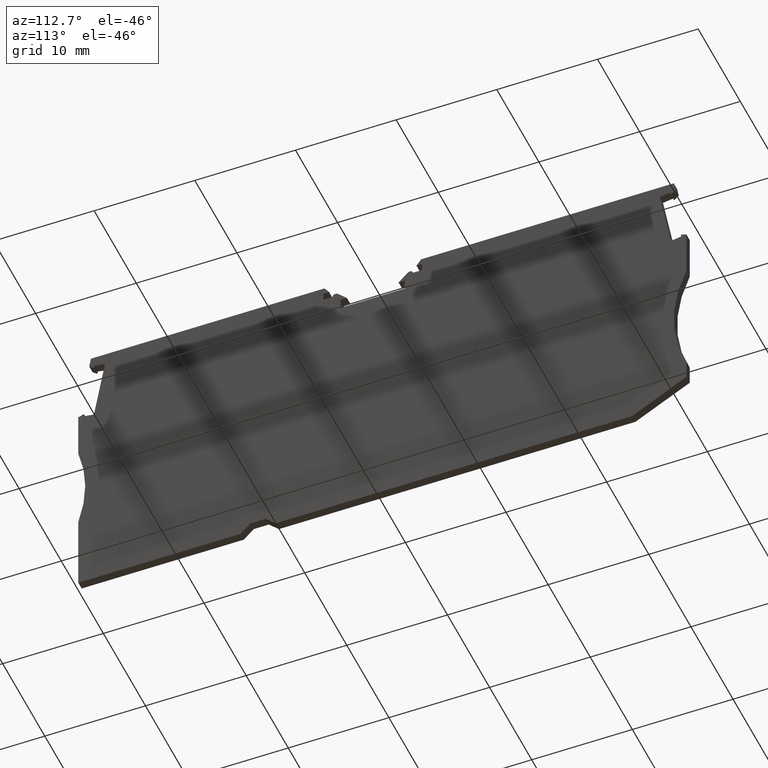
[diagram: clean part render]
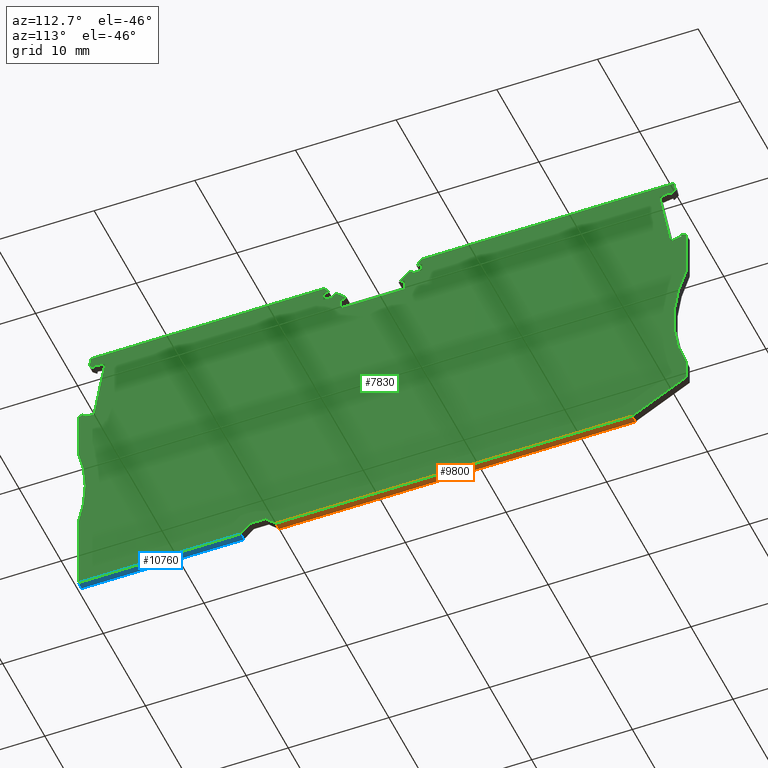
[diagram: same view with three faces highlighted in distinct colors, each labeled with its STEP entity id]
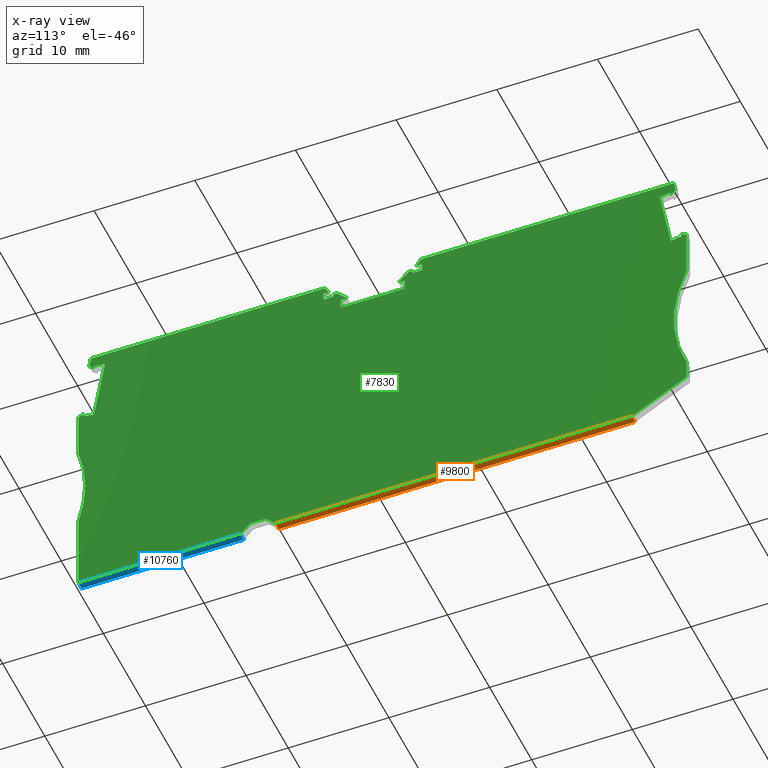
[diagram: x-ray of the same camera — body ghosted, the three highlighted faces saturated]
A machine part, auxiliary view with three faces highlighted in distinct colors.
The next image is the same camera in x-ray (body ghosted, the three faces saturated) — at least one of them is partly hidden behind the body in this view.
Their STEP definitions:

[orange] entity #9800 — the highlighted planar face has unit normal (0, 0, 1).
#850=CARTESIAN_POINT('',(5.15000000000215,19.5999999999931,
6.20000000000615));
#860=VERTEX_POINT('',#850);
#890=CARTESIAN_POINT('',(5.15000000000215,36.2906041739468,
6.20000000000203));
#900=DIRECTION('',(-2.6054385416317E-18,-1.,2.47413201037716E-13));
#910=VECTOR('',#900,1.);
#920=LINE('',#890,#910);
#930=CARTESIAN_POINT('',(5.15000000000215,54.9927090400278,
6.1999999999974));
#940=VERTEX_POINT('',#930);
#950=EDGE_CURVE('',#940,#860,#920,.T.);
#6900=CARTESIAN_POINT('',(5.95000000000217,54.9927090400278,
6.1999999999974));
#6910=VERTEX_POINT('',#6900);
#6940=CARTESIAN_POINT('',(5.95000000000216,-11.6296808260532,
6.20000000001388));
#6950=DIRECTION('',(5.81165897728895E-17,1.,-2.47413201037716E-13));
#6960=VECTOR('',#6950,1.);
#6970=LINE('',#6940,#6960);
#6980=CARTESIAN_POINT('',(5.95000000000216,19.5999999999931,
6.20000000000615));
#6990=VERTEX_POINT('',#6980);
#7000=EDGE_CURVE('',#6990,#6910,#6970,.T.);
#9270=CARTESIAN_POINT('',(3.80000000000219,54.9927090400278,
6.1999999999974));
#9280=DIRECTION('',(-1.,2.60543854163169E-18,1.33874887071976E-29));
#9290=VECTOR('',#9280,1.);
#9300=LINE('',#9270,#9290);
#9310=EDGE_CURVE('',#6910,#940,#9300,.T.);
#9640=CARTESIAN_POINT('',(5.15000000000215,19.5999999999931,
6.20000000000615));
#9650=DIRECTION('',(1.40359132708416E-29,2.47413201037716E-13,1.));
#9660=DIRECTION('',(-2.6054385416317E-18,-1.,2.47413201037716E-13));
#9670=AXIS2_PLACEMENT_3D('',#9640,#9650,#9660);
#9680=PLANE('',#9670);
#9690=ORIENTED_EDGE('',*,*,#950,.F.);
#9700=CARTESIAN_POINT('',(3.80000000000219,19.5999999999931,
6.20000000000615));
#9710=DIRECTION('',(1.,-2.6054385416317E-18,-1.33902586593012E-29));
#9720=VECTOR('',#9710,1.);
#9730=LINE('',#9700,#9720);
#9740=EDGE_CURVE('',#860,#6990,#9730,.T.);
#9750=ORIENTED_EDGE('',*,*,#9740,.F.);
#9760=ORIENTED_EDGE('',*,*,#7000,.F.);
#9770=ORIENTED_EDGE('',*,*,#9310,.F.);
#9780=EDGE_LOOP('',(#9770,#9760,#9750,#9690));
#9790=FACE_OUTER_BOUND('',#9780,.T.);
#9800=ADVANCED_FACE('',(#9790),#9680,.F.);

[blue] entity #10760 — the highlighted planar face has unit normal (0, 0, 1).
#530=CARTESIAN_POINT('',(5.15000000000215,-3.32178728967847E-12,
6.200000000011));
#540=VERTEX_POINT('',#530);
#570=CARTESIAN_POINT('',(5.15000000000215,36.2906041739468,
6.20000000000204));
#580=DIRECTION('',(2.6054385416317E-18,1.,-2.47218912008407E-13));
#590=VECTOR('',#580,1.);
#600=LINE('',#570,#590);
#610=CARTESIAN_POINT('',(5.15000000000215,16.0999999999931,
6.20000000000702));
#620=VERTEX_POINT('',#610);
#630=EDGE_CURVE('',#540,#620,#600,.T.);
#7220=CARTESIAN_POINT('',(5.95000000000216,16.099999999993,
6.20000000000702));
#7230=VERTEX_POINT('',#7220);
#7260=CARTESIAN_POINT('',(5.95000000000216,-11.6296808260532,
6.20000000001388));
#7270=DIRECTION('',(5.81165897728895E-17,1.,-2.47218912008407E-13));
#7280=VECTOR('',#7270,1.);
#7290=LINE('',#7260,#7280);
#7300=CARTESIAN_POINT('',(5.95000000000216,-3.32178728967847E-12,
6.200000000011));
#7310=VERTEX_POINT('',#7300);
#7320=EDGE_CURVE('',#7310,#7230,#7290,.T.);
#10420=CARTESIAN_POINT('',(3.80000000000219,16.099999999993,
6.20000000000702));
#10430=DIRECTION('',(1.,-2.60543854163169E-18,-1.33902586593012E-29));
#10440=VECTOR('',#10430,1.);
#10450=LINE('',#10420,#10440);
#10460=EDGE_CURVE('',#620,#7230,#10450,.T.);
#10600=CARTESIAN_POINT('',(5.15000000000215,3.99999999999303,
6.20000000001001));
#10610=DIRECTION('',(1.40354070627164E-29,2.47218912008407E-13,1.));
#10620=DIRECTION('',(-2.6054385416317E-18,-1.,2.47218912008407E-13));
#10630=AXIS2_PLACEMENT_3D('',#10600,#10610,#10620);
#10640=PLANE('',#10630);
#10650=ORIENTED_EDGE('',*,*,#630,.T.);
#10660=CARTESIAN_POINT('',(3.80000000000219,-3.32178728967847E-12,
6.200000000011));
#10670=DIRECTION('',(-1.,2.6054385416317E-18,1.33889822652162E-29));
#10680=VECTOR('',#10670,1.);
#10690=LINE('',#10660,#10680);
#10700=EDGE_CURVE('',#7310,#540,#10690,.T.);
#10710=ORIENTED_EDGE('',*,*,#10700,.T.);
#10720=ORIENTED_EDGE('',*,*,#7320,.F.);
#10730=ORIENTED_EDGE('',*,*,#10460,.T.);
#10740=EDGE_LOOP('',(#10730,#10720,#10710,#10650));
#10750=FACE_OUTER_BOUND('',#10740,.T.);
#10760=ADVANCED_FACE('',(#10750),#10640,.F.);

[green] entity #7830 — the highlighted planar face has unit normal (1, -0, 0).
#3960=CARTESIAN_POINT('',(5.95000000000216,25.5499999999946,
11.9749999999997));
#3970=DIRECTION('',(1.,-5.81165897728895E-17,3.37505634420511E-31));
#3980=DIRECTION('',(5.81165897728895E-17,1.,-2.47218912008407E-13));
#3990=AXIS2_PLACEMENT_3D('',#3960,#3970,#3980);
#4000=PLANE('',#3990);
#4010=CARTESIAN_POINT('',(5.95000000000216,4.48828473633635,
44.4000000000078));
#4020=DIRECTION('',(-1.00918399063042E-17,-0.173648177667372,
-0.98480775301213));
#4030=VECTOR('',#4020,1.);
#4040=LINE('',#4010,#4030);
#4050=CARTESIAN_POINT('',(5.95000000000216,2.65231721275191,
33.9877107621221));
#4060=VERTEX_POINT('',#4050);
#4070=CARTESIAN_POINT('',(5.95000000000216,1.55418527211285,
27.7598950516506));
#4080=VERTEX_POINT('',#4070);
#4090=EDGE_CURVE('',#4060,#4080,#4040,.T.);
#4100=ORIENTED_EDGE('',*,*,#4090,.T.);
#4110=CARTESIAN_POINT('',(5.95000000000216,-11.6296808260457,
36.5060123547894));
#4120=DIRECTION('',(5.72336681869704E-17,0.984807753012186,
-0.173648177667055));
#4130=VECTOR('',#4120,1.);
#4140=LINE('',#4110,#4130);
#4150=CARTESIAN_POINT('',(5.95000000000216,1.60477348499745,
34.1724209847973));
#4160=VERTEX_POINT('',#4150);
#4170=EDGE_CURVE('',#4160,#4060,#4140,.T.);
#4180=ORIENTED_EDGE('',*,*,#4170,.T.);
#4190=CARTESIAN_POINT('',(5.95000000000216,3.40817161270295,
44.4000000000081));
#4200=DIRECTION('',(1.00918399062575E-17,0.173648177666569,
0.984807753012272));
#4210=VECTOR('',#4200,1.);
#4220=LINE('',#4190,#4210);
#4230=CARTESIAN_POINT('',(5.95000000000216,1.55685652993745,
33.9006704287135));
#4240=VERTEX_POINT('',#4230);
#4250=EDGE_CURVE('',#4240,#4160,#4220,.T.);
#4260=ORIENTED_EDGE('',*,*,#4250,.T.);
#4270=CARTESIAN_POINT('',(5.95000000000216,-11.6296808260437,
44.9654890605981));
#4280=DIRECTION('',(4.45198906485883E-17,0.76604444311968,
-0.642787609685702));
#4290=VECTOR('',#4280,1.);
#4300=LINE('',#4270,#4290);
#4310=CARTESIAN_POINT('',(5.95000000000216,1.08804400656258,
34.2940508441678));
#4320=VERTEX_POINT('',#4310);
#4330=EDGE_CURVE('',#4320,#4240,#4300,.T.);
#4340=ORIENTED_EDGE('',*,*,#4330,.T.);
#4350=CARTESIAN_POINT('',(5.95000000000216,2.86999550841224,
44.4000000000082));
#4360=DIRECTION('',(-1.00918399063173E-17,-0.173648177667598,
-0.984807753012091));
#4370=VECTOR('',#4360,1.);
#4380=LINE('',#4350,#4370);
#4390=CARTESIAN_POINT('',(5.95000000000216,1.25660363491963,
35.2499999999869));
#4400=VERTEX_POINT('',#4390);
#4410=EDGE_CURVE('',#4400,#4320,#4380,.T.);
#4420=ORIENTED_EDGE('',*,*,#4410,.T.);
#4430=CARTESIAN_POINT('',(5.95000000000216,-11.6296808260461,
35.2499999999885));
#4440=DIRECTION('',(-5.81165897728895E-17,-1.,1.26176846748649E-13));
#4450=VECTOR('',#4440,1.);
#4460=LINE('',#4430,#4450);
#4470=CARTESIAN_POINT('',(5.95000000000216,24.4514317309689,
35.2499999999839));
#4480=VERTEX_POINT('',#4470);
#4490=EDGE_CURVE('',#4480,#4400,#4460,.T.);
#4500=ORIENTED_EDGE('',*,*,#4490,.T.);
#4510=CARTESIAN_POINT('',(5.95000000000216,18.0445327563391,
44.4000000000045));
#4520=DIRECTION('',(-3.3334306454798E-17,-0.573576436350841,
0.819152044289136));
#4530=VECTOR('',#4520,1.);
#4540=LINE('',#4510,#4530);
#4550=CARTESIAN_POINT('',(5.95000000000216,24.9065666307521,
34.6000000000594));
#4560=VERTEX_POINT('',#4550);
#4570=EDGE_CURVE('',#4560,#4480,#4540,.T.);
#4580=ORIENTED_EDGE('',*,*,#4570,.T.);
#4590=CARTESIAN_POINT('',(5.95000000000216,-11.6296808260462,
34.6000000000684));
#4600=DIRECTION('',(5.81165897728895E-17,1.,-2.47218912008407E-13));
#4610=VECTOR('',#4600,1.);
#4620=LINE('',#4590,#4610);
#4630=CARTESIAN_POINT('',(5.95000000000216,24.3500000001362,
34.6000000000596));
#4640=VERTEX_POINT('',#4630);
#4650=EDGE_CURVE('',#4640,#4560,#4620,.T.);
#4660=ORIENTED_EDGE('',*,*,#4650,.T.);
#4670=CARTESIAN_POINT('',(5.95000000000216,24.3500000000845,
44.4000000000029));
#4680=DIRECTION('',(-3.07122853704836E-28,-5.27879129297304E-12,1.));
#4690=VECTOR('',#4680,1.);
#4700=LINE('',#4670,#4690);
#4710=CARTESIAN_POINT('',(5.95000000000216,24.3500000001405,
33.7999999999752));
#4720=VERTEX_POINT('',#4710);
#4730=EDGE_CURVE('',#4720,#4640,#4700,.T.);
#4740=ORIENTED_EDGE('',*,*,#4730,.T.);
#4750=CARTESIAN_POINT('',(5.95000000000216,-11.6296808260464,
33.7999999999841));
#4760=DIRECTION('',(-5.81165897728895E-17,-1.,2.47316056523061E-13));
#4770=VECTOR('',#4760,1.);
#4780=LINE('',#4750,#4770);
#4790=CARTESIAN_POINT('',(5.95000000000216,25.2595836944425,
33.799999999975));
#4800=VERTEX_POINT('',#4790);
#4810=EDGE_CURVE('',#4800,#4720,#4780,.T.);
#4820=ORIENTED_EDGE('',*,*,#4810,.T.);
#4830=CARTESIAN_POINT('',(5.95000000000216,25.5595836944425,
33.8000000000614));
#4840=DIRECTION('',(1.,-5.81165897728895E-17,3.37505634420511E-31));
#4850=DIRECTION('',(5.81165897728895E-17,1.,-2.47316056523061E-13));
#4860=AXIS2_PLACEMENT_3D('',#4830,#4840,#4850);
#4870=CIRCLE('',#4860,0.3);
#4880=CARTESIAN_POINT('',(5.95000000000216,25.7717157287986,
34.0121320344173));
#4890=VERTEX_POINT('',#4880);
#4900=EDGE_CURVE('',#4890,#4800,#4870,.T.);
#4910=ORIENTED_EDGE('',*,*,#4900,.T.);
#4920=CARTESIAN_POINT('',(5.95000000000216,-11.6296808260371,
71.4135285892713));
#4930=DIRECTION('',(-4.10946347278371E-17,-0.707106781186374,
0.707106781186721));
#4940=VECTOR('',#4930,1.);
#4950=LINE('',#4920,#4940);
#4960=CARTESIAN_POINT('',(5.95000000000216,26.6838477632309,
33.0999999999844));
#4970=VERTEX_POINT('',#4960);
#4980=EDGE_CURVE('',#4970,#4890,#4950,.T.);
#4990=ORIENTED_EDGE('',*,*,#4980,.T.);
#5000=CARTESIAN_POINT('',(5.95000000000216,-11.6296808260466,
33.0999999999944));
#5010=DIRECTION('',(5.81165897728895E-17,1.,-2.58862375979163E-13));
#5020=VECTOR('',#5010,1.);
#5030=LINE('',#5000,#5020);
#5040=CARTESIAN_POINT('',(5.95000000000216,26.0750000001225,
33.0999999999846));
#5050=VERTEX_POINT('',#5040);
#5060=EDGE_CURVE('',#5050,#4970,#5030,.T.);
#5070=ORIENTED_EDGE('',*,*,#5060,.T.);
#5080=CARTESIAN_POINT('',(5.95000000000216,26.0750000001259,
44.4000000000025));
#5090=DIRECTION('',(1.73980824901728E-29,3.0517255389384E-13,1.));
#5100=VECTOR('',#5090,1.);
#5110=LINE('',#5080,#5100);
#5120=CARTESIAN_POINT('',(5.95000000000216,26.0750000001222,
32.0499999999848));
#5130=VERTEX_POINT('',#5120);
#5140=EDGE_CURVE('',#5130,#5050,#5110,.T.);
#5150=ORIENTED_EDGE('',*,*,#5140,.T.);
#5160=CARTESIAN_POINT('',(5.95000000000216,-11.6296808260468,
32.0499999999963));
#5170=DIRECTION('',(-5.81165897728895E-17,-1.,3.0517255389384E-13));
#5180=VECTOR('',#5170,1.);
#5190=LINE('',#5160,#5180);
#5200=CARTESIAN_POINT('',(5.95000000000217,32.4250000001222,
32.0499999999829));
#5210=VERTEX_POINT('',#5200);
#5220=EDGE_CURVE('',#5210,#5130,#5190,.T.);
#5230=ORIENTED_EDGE('',*,*,#5220,.T.);
#5240=CARTESIAN_POINT('',(5.95000000000217,32.4250000001252,
44.4000000000009));
#5250=DIRECTION('',(-1.39848487956171E-29,-2.46441755891169E-13,-1.));
#5260=VECTOR('',#5250,1.);
#5270=LINE('',#5240,#5260);
#5280=CARTESIAN_POINT('',(5.95000000000217,32.4250000001224,
33.0999999999826));
#5290=VERTEX_POINT('',#5280);
#5300=EDGE_CURVE('',#5290,#5210,#5270,.T.);
#5310=ORIENTED_EDGE('',*,*,#5300,.T.);
#5320=CARTESIAN_POINT('',(5.95000000000216,-11.6296808260466,
33.0999999999955));
#5330=DIRECTION('',(5.81165897728895E-17,1.,-2.92835200532693E-13));
#5340=VECTOR('',#5330,1.);
#5350=LINE('',#5320,#5340);
#5360=CARTESIAN_POINT('',(5.95000000000217,31.8161522370139,
33.0999999999827));
#5370=VERTEX_POINT('',#5360);
#5380=EDGE_CURVE('',#5370,#5290,#5350,.T.);
#5390=ORIENTED_EDGE('',*,*,#5380,.T.);
#5400=CARTESIAN_POINT('',(5.95000000000216,-11.6296808260573,
-10.3458330630619));
#5410=DIRECTION('',(-4.10946347278593E-17,-0.707106781186764,
-0.707106781186331));
#5420=VECTOR('',#5410,1.);
#5430=LINE('',#5400,#5420);
#5440=CARTESIAN_POINT('',(5.95000000000217,32.7282842714468,
34.0121320344151));
#5450=VERTEX_POINT('',#5440);
#5460=EDGE_CURVE('',#5450,#5370,#5430,.T.);
#5470=ORIENTED_EDGE('',*,*,#5460,.T.);
#5480=CARTESIAN_POINT('',(5.95000000000217,32.9404163058027,
33.8000000000591));
#5490=DIRECTION('',(-1.,5.81165897728895E-17,-3.37505634420511E-31));
#5500=DIRECTION('',(-5.81165897728895E-17,-1.,3.04353764413179E-13));
#5510=AXIS2_PLACEMENT_3D('',#5480,#5490,#5500);
#5520=CIRCLE('',#5510,0.3);
#5530=CARTESIAN_POINT('',(5.95000000000217,33.2404163058027,
33.8000000000157));
#5540=VERTEX_POINT('',#5530);
#5550=EDGE_CURVE('',#5450,#5540,#5520,.T.);
#5560=ORIENTED_EDGE('',*,*,#5550,.F.);
#5570=CARTESIAN_POINT('',(5.95000000000216,-11.6296808260464,
33.8000000000268));
#5580=DIRECTION('',(-5.81165897728895E-17,-1.,2.47316056523061E-13));
#5590=VECTOR('',#5580,1.);
#5600=LINE('',#5570,#5590);
#5610=CARTESIAN_POINT('',(5.95000000000217,34.1500000001048,
33.8000000000155));
#5620=VERTEX_POINT('',#5610);
#5630=EDGE_CURVE('',#5620,#5540,#5600,.T.);
#5640=ORIENTED_EDGE('',*,*,#5630,.T.);
#5650=CARTESIAN_POINT('',(5.95000000000217,34.150000000166,
44.4000000000005));
#5660=DIRECTION('',(-3.35194174038394E-28,-5.77342340601916E-12,-1.));
#5670=VECTOR('',#5660,1.);
#5680=LINE('',#5650,#5670);
#5690=CARTESIAN_POINT('',(5.95000000000217,34.1500000001094,
34.6000000000571));
#5700=VERTEX_POINT('',#5690);
#5710=EDGE_CURVE('',#5700,#5620,#5680,.T.);
#5720=ORIENTED_EDGE('',*,*,#5710,.T.);
#5730=CARTESIAN_POINT('',(5.95000000000216,-11.6296808260462,
34.6000000000684));
#5740=DIRECTION('',(5.81165897728895E-17,1.,-2.47218912008407E-13));
#5750=VECTOR('',#5740,1.);
#5760=LINE('',#5730,#5750);
#5770=CARTESIAN_POINT('',(5.95000000000217,33.5934333694935,
34.6000000000572));
#5780=VERTEX_POINT('',#5770);
#5790=EDGE_CURVE('',#5780,#5700,#5760,.T.);
#5800=ORIENTED_EDGE('',*,*,#5790,.T.);
#5810=CARTESIAN_POINT('',(5.95000000000217,40.4554672439113,
44.3999999999989));
#5820=DIRECTION('',(-3.33343064548209E-17,-0.573576436351246,
-0.819152044288852));
#5830=VECTOR('',#5820,1.);
#5840=LINE('',#5810,#5830);
#5850=CARTESIAN_POINT('',(5.95000000000217,34.0485682692847,
35.2499999999926));
#5860=VERTEX_POINT('',#5850);
#5870=EDGE_CURVE('',#5860,#5780,#5840,.T.);
#5880=ORIENTED_EDGE('',*,*,#5870,.T.);
#5890=CARTESIAN_POINT('',(5.95000000000216,-11.6296808260461,
35.2500000000039));
#5900=DIRECTION('',(-5.81165897728895E-17,-1.,2.47218912008407E-13));
#5910=VECTOR('',#5900,1.);
#5920=LINE('',#5890,#5910);
#5930=CARTESIAN_POINT('',(5.95000000000217,59.1497897161592,
35.2499999999864));
#5940=VERTEX_POINT('',#5930);
#5950=EDGE_CURVE('',#5940,#5860,#5920,.T.);
#5960=ORIENTED_EDGE('',*,*,#5950,.T.);
#5970=CARTESIAN_POINT('',(5.95000000000217,57.5363978426735,
44.3999999999947));
#5980=DIRECTION('',(-1.00918399062897E-17,-0.173648177667112,
0.984807753012176));
#5990=VECTOR('',#5980,1.);
#6000=LINE('',#5970,#5990);
#6010=CARTESIAN_POINT('',(5.95000000000217,59.3175253285266,
34.2987240710663));
#6020=VERTEX_POINT('',#6010);
#6030=EDGE_CURVE('',#6020,#5940,#6000,.T.);
#6040=ORIENTED_EDGE('',*,*,#6030,.T.);
#6050=CARTESIAN_POINT('',(5.95000000000216,-11.629680826061,
-25.233050446115));
#6060=DIRECTION('',(4.45198906486063E-17,0.766044443119997,
0.642787609685325));
#6070=VECTOR('',#6060,1.);
#6080=LINE('',#6050,#6070);
#6090=CARTESIAN_POINT('',(5.95000000000217,58.8487128051534,
33.9053436556138));
#6100=VERTEX_POINT('',#6090);
#6110=EDGE_CURVE('',#6100,#6020,#6080,.T.);
#6120=ORIENTED_EDGE('',*,*,#6110,.T.);
#6130=CARTESIAN_POINT('',(5.95000000000217,56.998221738385,
44.3999999999948));
#6140=DIRECTION('',(1.009183990623E-17,0.173648177666084,
-0.984807753012357));
#6150=VECTOR('',#6140,1.);
#6160=LINE('',#6130,#6150);
#6170=CARTESIAN_POINT('',(5.95000000000217,58.8014270829787,
34.1735143121116));
#6180=VERTEX_POINT('',#6170);
#6190=EDGE_CURVE('',#6180,#6100,#6160,.T.);
#6200=ORIENTED_EDGE('',*,*,#6190,.T.);
#6210=CARTESIAN_POINT('',(5.95000000000216,-11.6296808260494,
21.7546097065872));
#6220=DIRECTION('',(5.72336681869753E-17,0.984807753012272,
0.17364817766657));
#6230=VECTOR('',#6220,1.);
#6240=LINE('',#6210,#6230);
#6250=CARTESIAN_POINT('',(5.95000000000217,57.7476827872554,
33.9877107620084));
#6260=VERTEX_POINT('',#6250);
#6270=EDGE_CURVE('',#6260,#6180,#6240,.T.);
#6280=ORIENTED_EDGE('',*,*,#6270,.T.);
#6290=CARTESIAN_POINT('',(5.95000000000217,55.9117152636584,
44.3999999999951));
#6300=DIRECTION('',(-1.00918399062767E-17,-0.173648177666887,
0.984807753012216));
#6310=VECTOR('',#6300,1.);
#6320=LINE('',#6290,#6310);
#6330=CARTESIAN_POINT('',(5.95000000000217,58.8460075109985,
27.7588017242058));
#6340=VERTEX_POINT('',#6330);
#6350=EDGE_CURVE('',#6340,#6260,#6320,.T.);
#6360=ORIENTED_EDGE('',*,*,#6350,.T.);
#6370=CARTESIAN_POINT('',(5.95000000000216,-11.629680826051,
15.3320363863845));
#6380=DIRECTION('',(-5.72336681869717E-17,-0.984807753012211,
-0.173648177666912));
#6390=VECTOR('',#6380,1.);
#6400=LINE('',#6370,#6390);
#6410=CARTESIAN_POINT('',(5.95000000000217,59.8997518067207,
27.9446052743093));
#6420=VERTEX_POINT('',#6410);
#6430=EDGE_CURVE('',#6420,#6340,#6400,.T.);
#6440=ORIENTED_EDGE('',*,*,#6430,.T.);
#6450=CARTESIAN_POINT('',(5.95000000000217,56.9982217383665,
44.3999999999948));
#6460=DIRECTION('',(1.00918399063063E-17,0.173648177667398,
-0.984807753012126));
#6470=VECTOR('',#6460,1.);
#6480=LINE('',#6450,#6470);
#6490=CARTESIAN_POINT('',(5.95000000000217,59.8524660845461,
28.212775930805));
#6500=VERTEX_POINT('',#6490);
#6510=EDGE_CURVE('',#6500,#6420,#6480,.T.);
#6520=ORIENTED_EDGE('',*,*,#6510,.T.);
#6530=CARTESIAN_POINT('',(5.95000000000216,-11.6296808260414,
54.2301496871365));
#6540=DIRECTION('',(-5.46117305549652E-17,-0.9396926207883,
0.342020143319098));
#6550=VECTOR('',#6540,1.);
#6560=LINE('',#6530,#6550);
#6570=CARTESIAN_POINT('',(5.95000000000217,60.400000000004,
28.0134898833314));
#6580=VERTEX_POINT('',#6570);
#6590=EDGE_CURVE('',#6580,#6500,#6560,.T.);
#6600=ORIENTED_EDGE('',*,*,#6590,.T.);
#6610=CARTESIAN_POINT('',(5.95000000000217,60.400000000008,
44.399999999994));
#6620=DIRECTION('',(1.40300144588088E-29,2.47218912007316E-13,1.));
#6630=VECTOR('',#6620,1.);
#6640=LINE('',#6610,#6630);
#6650=CARTESIAN_POINT('',(5.95000000000217,60.4000000000028,
23.1999999999913));
#6660=VERTEX_POINT('',#6650);
#6670=EDGE_CURVE('',#6660,#6580,#6640,.T.);
#6680=ORIENTED_EDGE('',*,*,#6670,.T.);
#6690=CARTESIAN_POINT('',(5.95000000000217,74.1477270848688,
17.1999999999879));
#6700=DIRECTION('',(1.,-2.6054385416317E-18,-1.33912933811495E-29));
#6710=DIRECTION('',(2.6054385416317E-18,1.,-2.47218912008407E-13));
#6720=AXIS2_PLACEMENT_3D('',#6690,#6700,#6710);
#6730=CIRCLE('',#6720,15.);
#6740=CARTESIAN_POINT('',(5.95000000000217,60.3999999999981,
11.1999999999951));
#6750=VERTEX_POINT('',#6740);
#6760=EDGE_CURVE('',#6660,#6750,#6730,.T.);
#6770=ORIENTED_EDGE('',*,*,#6760,.F.);
#6780=CARTESIAN_POINT('',(5.95000000000217,60.4000000000063,
44.399999999994));
#6790=DIRECTION('',(1.4035660166779E-29,2.47316056523061E-13,1.));
#6800=VECTOR('',#6790,1.);
#6810=LINE('',#6780,#6800);
#6820=CARTESIAN_POINT('',(5.95000000000217,60.3999999999976,
9.19999999998612));
#6830=VERTEX_POINT('',#6820);
#6840=EDGE_CURVE('',#6830,#6750,#6810,.T.);
#6850=ORIENTED_EDGE('',*,*,#6840,.T.);
#6860=CARTESIAN_POINT('',(5.95000000000216,-11.6296808260624,
-30.762532824135));
#6870=DIRECTION('',(5.08191924346965E-17,0.87443521089744,
0.485142311020951));
#6880=VECTOR('',#6870,1.);
#6890=LINE('',#6860,#6880);
#6900=CARTESIAN_POINT('',(5.95000000000217,54.9927090400278,
6.1999999999974));
#6910=VERTEX_POINT('',#6900);
#6920=EDGE_CURVE('',#6910,#6830,#6890,.T.);
#6930=ORIENTED_EDGE('',*,*,#6920,.T.);
#6940=CARTESIAN_POINT('',(5.95000000000216,-11.6296808260532,
6.20000000001388));
#6950=DIRECTION('',(5.81165897728895E-17,1.,-2.47413201037716E-13));
#6960=VECTOR('',#6950,1.);
#6970=LINE('',#6940,#6960);
#6980=CARTESIAN_POINT('',(5.95000000000216,19.5999999999931,
6.20000000000615));
#6990=VERTEX_POINT('',#6980);
#7000=EDGE_CURVE('',#6990,#6910,#6970,.T.);
#7010=ORIENTED_EDGE('',*,*,#7000,.T.);
#7020=CARTESIAN_POINT('',(5.95000000000216,-18.599999999995,
44.4000000000135));
#7030=DIRECTION('',(4.10946347278368E-17,0.707106781186369,
-0.707106781186726));
#7040=VECTOR('',#7030,1.);
#7050=LINE('',#7020,#7040);
#7060=CARTESIAN_POINT('',(5.95000000000216,18.5999999999933,
7.20000000000638));
#7070=VERTEX_POINT('',#7060);
#7080=EDGE_CURVE('',#7070,#6990,#7050,.T.);
#7090=ORIENTED_EDGE('',*,*,#7080,.T.);
#7100=CARTESIAN_POINT('',(5.95000000000216,-11.629680826053,
7.20000000001389));
#7110=DIRECTION('',(5.81165897728895E-17,1.,-2.47316056523061E-13));
#7120=VECTOR('',#7110,1.);
#7130=LINE('',#7100,#7120);
#7140=CARTESIAN_POINT('',(5.95000000000216,17.0999999999933,
7.20000000000679));
#7150=VERTEX_POINT('',#7140);
#7160=EDGE_CURVE('',#7150,#7070,#7130,.T.);
#7170=ORIENTED_EDGE('',*,*,#7160,.T.);
#7180=CARTESIAN_POINT('',(5.95000000000217,54.3000000000002,
44.3999999999955));
#7190=DIRECTION('',(4.10946347278567E-17,0.70710678118672,
0.707106781186375));
#7200=VECTOR('',#7190,1.);
#7210=LINE('',#7180,#7200);
#7220=CARTESIAN_POINT('',(5.95000000000216,16.099999999993,
6.20000000000702));
#7230=VERTEX_POINT('',#7220);
#7240=EDGE_CURVE('',#7230,#7150,#7210,.T.);
#7250=ORIENTED_EDGE('',*,*,#7240,.T.);
#7260=CARTESIAN_POINT('',(5.95000000000216,-11.6296808260532,
6.20000000001388));
#7270=DIRECTION('',(5.81165897728895E-17,1.,-2.47218912008407E-13));
#7280=VECTOR('',#7270,1.);
#7290=LINE('',#7260,#7280);
#7300=CARTESIAN_POINT('',(5.95000000000216,-3.32178728967847E-12,
6.200000000011));
#7310=VERTEX_POINT('',#7300);
#7320=EDGE_CURVE('',#7310,#7230,#7290,.T.);
#7330=ORIENTED_EDGE('',*,*,#7320,.T.);
#7340=CARTESIAN_POINT('',(5.95000000000216,6.04671868131845E-12,
44.4000000000089));
#7350=DIRECTION('',(-1.39162937710337E-29,-2.45262143927505E-13,-1.));
#7360=VECTOR('',#7350,1.);
#7370=LINE('',#7340,#7360);
#7380=CARTESIAN_POINT('',(5.95000000000216,-1.36068933898059E-12,
14.1999999999946));
#7390=VERTEX_POINT('',#7380);
#7400=EDGE_CURVE('',#7390,#7310,#7370,.T.);
#7410=ORIENTED_EDGE('',*,*,#7400,.T.);
#7420=CARTESIAN_POINT('',(5.95000000000216,-14.3090880212528,
18.7000000000034));
#7430=DIRECTION('',(1.,-2.6054385416317E-18,-1.33912933811495E-29));
#7440=DIRECTION('',(2.6054385416317E-18,1.,-2.47218912008407E-13));
#7450=AXIS2_PLACEMENT_3D('',#7420,#7430,#7440);
#7460=CIRCLE('',#7450,15.);
#7470=CARTESIAN_POINT('',(5.95000000000216,8.86402062860725E-13,
23.2000000000051));
#7480=VERTEX_POINT('',#7470);
#7490=EDGE_CURVE('',#7390,#7480,#7460,.T.);
#7500=ORIENTED_EDGE('',*,*,#7490,.F.);
#7510=CARTESIAN_POINT('',(5.95000000000216,6.08579853178526E-12,
44.4000000000089));
#7520=DIRECTION('',(-1.39162937710337E-29,-2.45262143927505E-13,-1.));
#7530=VECTOR('',#7520,1.);
#7540=LINE('',#7510,#7530);
#7550=CARTESIAN_POINT('',(5.95000000000216,2.06412664738309E-12,
28.0134898834471));
#7560=VERTEX_POINT('',#7550);
#7570=EDGE_CURVE('',#7560,#7480,#7540,.T.);
#7580=ORIENTED_EDGE('',*,*,#7570,.T.);
#7590=CARTESIAN_POINT('',(5.95000000000216,-11.6296808260489,
23.7806322288468));
#7600=DIRECTION('',(-5.46117305549748E-17,-0.939692620788468,
-0.342020143318635));
#7610=VECTOR('',#7600,1.);
#7620=LINE('',#7590,#7610);
#7630=CARTESIAN_POINT('',(5.95000000000216,0.55436571631232,
28.215262503077));
#7640=VERTEX_POINT('',#7630);
#7650=EDGE_CURVE('',#7640,#7560,#7620,.T.);
#7660=ORIENTED_EDGE('',*,*,#7650,.T.);
#7670=CARTESIAN_POINT('',(5.95000000000216,3.4081716127214,
44.4000000000081));
#7680=DIRECTION('',(1.00918399063339E-17,0.173648177667883,
0.98480775301204));
#7690=VECTOR('',#7680,1.);
#7700=LINE('',#7670,#7690);
#7710=CARTESIAN_POINT('',(5.95000000000216,0.506641544359464,
27.944605274326));
#7720=VERTEX_POINT('',#7710);
#7730=EDGE_CURVE('',#7720,#7640,#7700,.T.);
#7740=ORIENTED_EDGE('',*,*,#7730,.T.);
#7750=CARTESIAN_POINT('',(5.95000000000216,-11.6296808260473,
30.0845663548104));
#7760=DIRECTION('',(-5.72336681869669E-17,-0.984807753012126,
0.173648177667397));
#7770=VECTOR('',#7760,1.);
#7780=LINE('',#7750,#7770);
#7790=EDGE_CURVE('',#4080,#7720,#7780,.T.);
#7800=ORIENTED_EDGE('',*,*,#7790,.T.);
#7810=EDGE_LOOP('',(#7800,#7740,#7660,#7580,#7500,#7410,#7330,#7250,
#7170,#7090,#7010,#6930,#6850,#6770,#6680,#6600,#6520,#6440,#6360,#6280,
#6200,#6120,#6040,#5960,#5880,#5800,#5720,#5640,#5560,#5470,#5390,#5310,
#5230,#5150,#5070,#4990,#4910,#4820,#4740,#4660,#4580,#4500,#4420,#4340,
#4260,#4180,#4100));
#7820=FACE_OUTER_BOUND('',#7810,.T.);
#7830=ADVANCED_FACE('',(#7820),#4000,.T.);